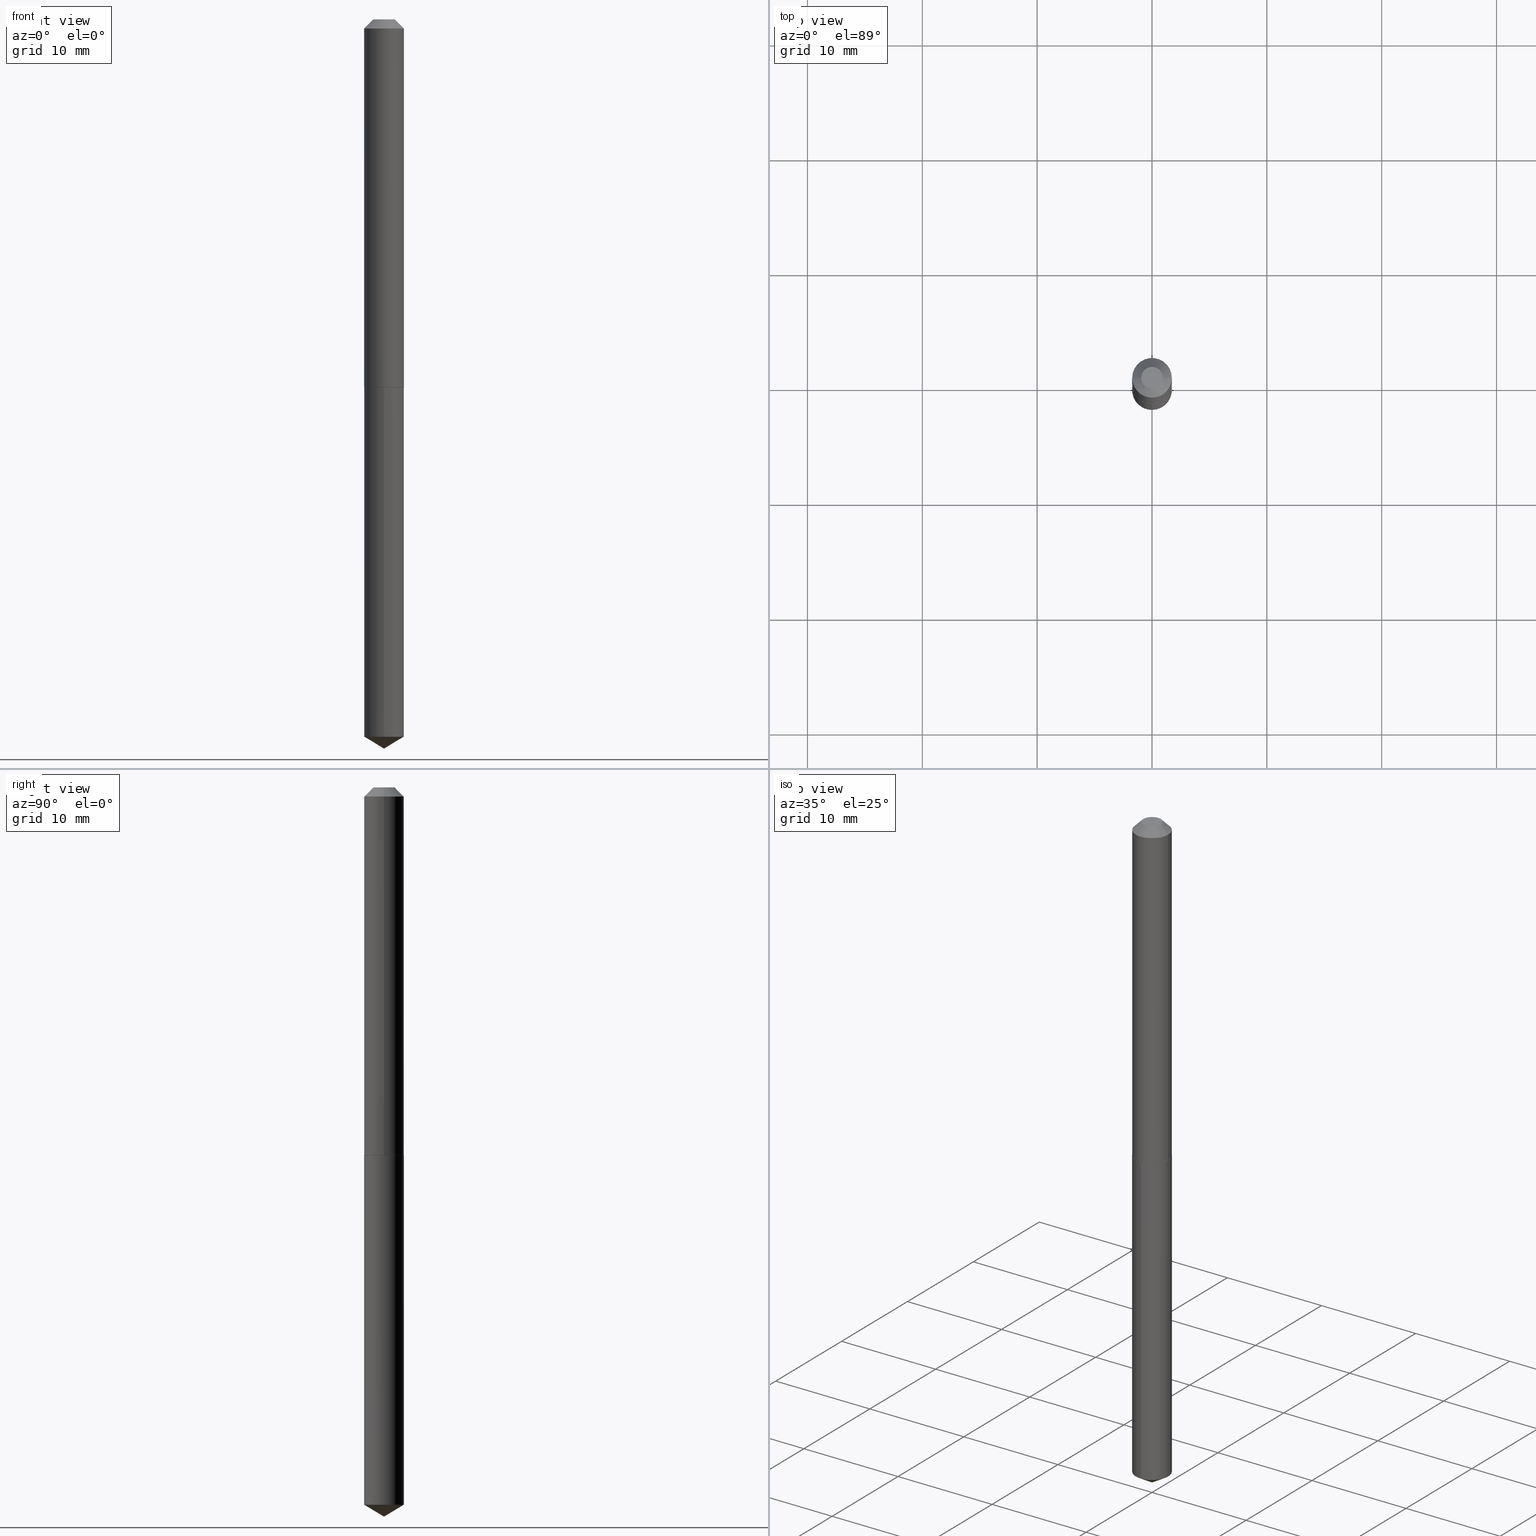
[diagram: canonical four-view strip — front | top / right | iso, engineering-drawing reading convention]
A machine part, canonical four-view strip (front | top / right | iso — engineering-drawing reading convention). The complete STEP part file that produces these views, byte-faithful:
ISO-10303-21;
HEADER;
FILE_DESCRIPTION (( 'STEP AP203' ),
    '1' );
FILE_NAME ('57135.STEP',
    '2024-04-22T22:43:11',
    ( '' ),
    ( '' ),
    'SwSTEP 2.0',
    'SolidWorks 2023',
    '' );
FILE_SCHEMA (( 'CONFIG_CONTROL_DESIGN' ));
ENDSEC;

DATA;
#1 = EDGE_LOOP ( 'NONE', ( #390, #190, #169, #112 ) ) ;
#2 = APPROVAL ( #269, 'UNSPECIFIED' ) ;
#3 = CALENDAR_DATE ( 2024, 22, 4 ) ;
#4 = ORIENTED_EDGE ( 'NONE', *, *, #261, .T. ) ;
#5 = VECTOR ( 'NONE', #339, 39.37007874015748143 ) ;
#6 = AXIS2_PLACEMENT_3D ( 'NONE', #24, #54, #318 ) ;
#7 = PERSON_AND_ORGANIZATION ( #346, #39 ) ;
#8 = APPROVAL_STATUS ( 'not_yet_approved' ) ;
#9 = CONICAL_SURFACE ( 'NONE', #56, 65.52281426576865897, 1.029744258676656088 ) ;
#10 = CARTESIAN_POINT ( 'NONE',  ( 0.000000000000000000, 0.000000000000000000, 0.000000000000000000 ) ) ;
#11 = FACE_OUTER_BOUND ( 'NONE', #264, .T. ) ;
#12 = EDGE_CURVE ( 'NONE', #366, #219, #192, .T. ) ;
#13 = DIRECTION ( 'NONE',  ( -2.445603191114708254E-29, 3.491288891975283825E-15, 1.000000000000000000 ) ) ;
#14 = CARTESIAN_POINT ( 'NONE',  ( -5.615316648579987107E-48, 8.017183961056824277E-34, 2.296212748401286994E-19 ) ) ;
#15 = VECTOR ( 'NONE', #370, 39.37007874015748143 ) ;
#16 = CIRCLE ( 'NONE', #381, 0.03675000000000000488 ) ;
#17 = DIRECTION ( 'NONE',  ( 1.000000000000000000, -6.982962677686265922E-15, 4.876176775795935793E-29 ) ) ;
#18 = CARTESIAN_POINT ( 'NONE',  ( 0.06800000000000000488, -5.756226556873131964E-16, -0.03125000000000020123 ) ) ;
#19 = EDGE_CURVE ( 'NONE', #243, #360, #298, .T. ) ;
#20 = CARTESIAN_POINT ( 'NONE',  ( 0.03675000000000000488, -4.138729785527085640E-16, 4.592425496826011592E-19 ) ) ;
#21 = VECTOR ( 'NONE', #349, 39.37007874015748143 ) ;
#22 = APPROVAL_DATE_TIME ( #119, #357 ) ;
#23 = ADVANCED_FACE ( 'NONE', ( #66 ), #195, .T. ) ;
#24 = CARTESIAN_POINT ( 'NONE',  ( 3.083736164599457894E-29, -4.402757968281207128E-15, -1.261000000000000343 ) ) ;
#25 = ORIENTED_EDGE ( 'NONE', *, *, #295, .T. ) ;
#26 = ORIENTED_EDGE ( 'NONE', *, *, #41, .F. ) ;
#27 = PERSON_AND_ORGANIZATION ( #346, #39 ) ;
#28 = ORIENTED_EDGE ( 'NONE', *, *, #19, .F. ) ;
#29 = MECHANICAL_CONTEXT ( 'NONE', #299, 'mechanical' ) ;
#30 = ORIENTED_EDGE ( 'NONE', *, *, #282, .T. ) ;
#31 = VERTEX_POINT ( 'NONE', #304 ) ;
#32 = VECTOR ( 'NONE', #100, 39.37007874015748854 ) ;
#33 = CALENDAR_DATE ( 2024, 22, 4 ) ;
#34 = CYLINDRICAL_SURFACE ( 'NONE', #113, 0.06800000000000008815 ) ;
#35 = CARTESIAN_POINT ( 'NONE',  ( 0.06800000000000017142, -4.875853689694455105E-15, -1.260500000000000620 ) ) ;
#36 = DIRECTION ( 'NONE',  ( 1.000000000000000000, -6.982962677686265922E-15, 4.876176775795935232E-29 ) ) ;
#37 = DIRECTION ( 'NONE',  ( -6.982962677686265922E-15, -1.000000000000000000, 4.017423520094504617E-15 ) ) ;
#38 = CIRCLE ( 'NONE', #284, 0.06750000000000024036 ) ;
#39 = ORGANIZATION ( 'UNSPECIFIED', 'UNSPECIFIED', '' ) ;
#40 = CARTESIAN_POINT ( 'NONE',  ( -0.03675000000000000488, 3.111782743243937594E-16, 4.592425496782722465E-19 ) ) ;
#41 = EDGE_CURVE ( 'NONE', #360, #384, #152, .T. ) ;
#42 = CARTESIAN_POINT ( 'NONE',  ( 3.082513430196366214E-29, -4.401012227611787991E-15, -1.260500000000000620 ) ) ;
#43 = PRODUCT_DEFINITION_SHAPE ( 'NONE', 'NONE',  #171 ) ;
#44 = FACE_OUTER_BOUND ( 'NONE', #333, .T. ) ;
#45 = CARTESIAN_POINT ( 'NONE',  ( -9.016975168297589205E-28, 1.287238536762655009E-13, 36.87007874015748143 ) ) ;
#46 = LINE ( 'NONE', #309, #156 ) ;
#47 = FACE_OUTER_BOUND ( 'NONE', #146, .T. ) ;
#48 = CARTESIAN_POINT ( 'NONE',  ( -0.06800000000000000488, -1.771891449408448412E-15, -0.03125000000000020123 ) ) ;
#49 = EDGE_CURVE ( 'NONE', #235, #360, #80, .T. ) ;
#50 = CONICAL_SURFACE ( 'NONE', #122, 0.06800000000000000488, 0.7853981633974450594 ) ;
#51 = EDGE_LOOP ( 'NONE', ( #120, #89, #118, #336 ) ) ;
#52 = DIRECTION ( 'NONE',  ( -2.445468806185136597E-29, 3.491481338843145583E-15, 1.000000000000000000 ) ) ;
#53 = EDGE_LOOP ( 'NONE', ( #114, #246, #4, #99 ) ) ;
#54 = DIRECTION ( 'NONE',  ( -2.445468806185136597E-29, 3.491481338843145583E-15, 1.000000000000000000 ) ) ;
#55 = ORIENTED_EDGE ( 'NONE', *, *, #282, .F. ) ;
#56 = AXIS2_PLACEMENT_3D ( 'NONE', #45, #253, #230 ) ;
#57 = ADVANCED_FACE ( 'NONE', ( #274 ), #101, .F. ) ;
#58 =( CONVERSION_BASED_UNIT ( 'INCH', #237 ) LENGTH_UNIT ( ) NAMED_UNIT ( #378 ) );
#59 = ORIENTED_EDGE ( 'NONE', *, *, #257, .F. ) ;
#60 = ORIENTED_EDGE ( 'NONE', *, *, #374, .F. ) ;
#61 = DIRECTION ( 'NONE',  ( 1.000000000000000000, -6.982962677686272233E-15, 0.000000000000000000 ) ) ;
#62 = VERTEX_POINT ( 'NONE', #148 ) ;
#63 = CC_DESIGN_DATE_AND_TIME_ASSIGNMENT ( #188, #180, ( #65 ) ) ;
#64 = AXIS2_PLACEMENT_3D ( 'NONE', #247, #225, #98 ) ;
#65 = SECURITY_CLASSIFICATION ( '', '', #218 ) ;
#66 = FACE_OUTER_BOUND ( 'NONE', #217, .T. ) ;
#67 = EDGE_CURVE ( 'NONE', #142, #208, #267, .T. ) ;
#68 = DIRECTION ( 'NONE',  ( -6.982962677686265922E-15, -1.000000000000000000, 4.017423520094504617E-15 ) ) ;
#69 = CC_DESIGN_APPROVAL ( #312, ( #65 ) ) ;
#70 = DIRECTION ( 'NONE',  ( 6.982962677686265922E-15, 1.000000000000000000, -3.491288891975283825E-15 ) ) ;
#71 = CARTESIAN_POINT ( 'NONE',  ( 7.642090019328601786E-31, -1.091087918388490144E-16, -0.03125000000000020123 ) ) ;
#72 = ADVANCED_BREP_SHAPE_REPRESENTATION ( '57135', ( #317, #207, #150 ), #198 ) ;
#73 = LINE ( 'NONE', #275, #128 ) ;
#74 = DIRECTION ( 'NONE',  ( 1.000000000000000000, -6.982962677686267499E-15, 0.000000000000000000 ) ) ;
#75 = LOCAL_TIME ( 18, 43, 11.00000000000000000, #147 ) ;
#76 = CARTESIAN_POINT ( 'NONE',  ( 0.06750000000000024036, -4.874107949025032024E-15, -1.261000000000000343 ) ) ;
#77 = EDGE_CURVE ( 'NONE', #208, #384, #236, .T. ) ;
#78 = PLANE ( 'NONE',  #324 ) ;
#79 = CALENDAR_DATE ( 2024, 22, 4 ) ;
#80 = CIRCLE ( 'NONE', #335, 0.06800000000000017142 ) ;
#81 = ORIENTED_EDGE ( 'NONE', *, *, #329, .T. ) ;
#82 = DIRECTION ( 'NONE',  ( 1.000000000000000000, -6.982962677686266711E-15, 4.876173967176390576E-29 ) ) ;
#83 = ORIENTED_EDGE ( 'NONE', *, *, #116, .F. ) ;
#84 = ORIENTED_EDGE ( 'NONE', *, *, #321, .F. ) ;
#85 = EDGE_CURVE ( 'NONE', #241, #62, #212, .T. ) ;
#86 = EDGE_LOOP ( 'NONE', ( #205, #25 ) ) ;
#87 = CLOSED_SHELL ( 'NONE', ( #23, #337, #221, #158, #57 ) ) ;
#88 = APPLICATION_PROTOCOL_DEFINITION ( 'international standard', 'config_control_design', 1994, #299 ) ;
#89 = ORIENTED_EDGE ( 'NONE', *, *, #257, .T. ) ;
#90 = APPROVAL_DATE_TIME ( #223, #312 ) ;
#91 = ADVANCED_FACE ( 'NONE', ( #189 ), #34, .T. ) ;
#92 = CARTESIAN_POINT ( 'NONE',  ( 3.083736164599458455E-29, -4.402757968281207916E-15, -1.261000000000000565 ) ) ;
#93 = COORDINATED_UNIVERSAL_TIME_OFFSET ( 5, 0, .BEHIND. ) ;
#94 = ORIENTED_EDGE ( 'NONE', *, *, #187, .F. ) ;
#95 = AXIS2_PLACEMENT_3D ( 'NONE', #226, #340, #70 ) ;
#96 = LOCAL_TIME ( 18, 43, 11.00000000000000000, #93 ) ;
#97 = PERSON_AND_ORGANIZATION_ROLE ( 'classification_officer' ) ;
#98 = DIRECTION ( 'NONE',  ( 1.000000000000000000, -6.982962677686265922E-15, 4.876176775795935232E-29 ) ) ;
#99 = ORIENTED_EDGE ( 'NONE', *, *, #295, .F. ) ;
#100 = DIRECTION ( 'NONE',  ( 6.090539988449786324E-15, 0.8571673007021148871, 0.5150380749100498257 ) ) ;
#101 = PLANE ( 'NONE',  #95 ) ;
#102 = CIRCLE ( 'NONE', #193, 0.06800000000000000488 ) ;
#103 = LINE ( 'NONE', #255, #387 ) ;
#104 = DIRECTION ( 'NONE',  ( -1.000000000000000000, 6.982962677686265922E-15, -4.876176775795935793E-29 ) ) ;
#105 = CC_DESIGN_PERSON_AND_ORGANIZATION_ASSIGNMENT ( #368, #334, ( #259 ) ) ;
#106 = LINE ( 'NONE', #199, #21 ) ;
#107 = FACE_OUTER_BOUND ( 'NONE', #53, .T. ) ;
#108 = AXIS2_PLACEMENT_3D ( 'NONE', #345, #196, #232 ) ;
#109 = APPROVAL_PERSON_ORGANIZATION ( #300, #312, #296 ) ;
#110 = DIRECTION ( 'NONE',  ( -6.982962677686265922E-15, -1.000000000000000000, 4.017423520094504617E-15 ) ) ;
#111 = DIRECTION ( 'NONE',  ( 1.000000000000000000, -6.982962677686272233E-15, 0.000000000000000000 ) ) ;
#112 = ORIENTED_EDGE ( 'NONE', *, *, #77, .F. ) ;
#113 = AXIS2_PLACEMENT_3D ( 'NONE', #10, #154, #36 ) ;
#114 = ORIENTED_EDGE ( 'NONE', *, *, #231, .F. ) ;
#115 =( LENGTH_UNIT ( ) NAMED_UNIT ( * ) SI_UNIT ( $, .METRE. ) );
#116 = EDGE_CURVE ( 'NONE', #181, #219, #270, .T. ) ;
#117 = ORIENTED_EDGE ( 'NONE', *, *, #211, .T. ) ;
#118 = ORIENTED_EDGE ( 'NONE', *, *, #19, .T. ) ;
#119 = DATE_AND_TIME ( #3, #75 ) ;
#120 = ORIENTED_EDGE ( 'NONE', *, *, #302, .F. ) ;
#121 = AXIS2_PLACEMENT_3D ( 'NONE', #338, #303, #61 ) ;
#122 = AXIS2_PLACEMENT_3D ( 'NONE', #201, #325, #328 ) ;
#123 = SHAPE_DEFINITION_REPRESENTATION ( #43, #72 ) ;
#124 = CYLINDRICAL_SURFACE ( 'NONE', #64, 0.06800000000000008815 ) ;
#125 = PERSON_AND_ORGANIZATION_ROLE ( 'design_supplier' ) ;
#126 = DIRECTION ( 'NONE',  ( -6.982962677686265922E-15, -1.000000000000000000, 4.017423520094504617E-15 ) ) ;
#127 = COORDINATED_UNIVERSAL_TIME_OFFSET ( 5, 0, .BEHIND. ) ;
#128 = VECTOR ( 'NONE', #350, 39.37007874015748143 ) ;
#129 = APPROVAL_PERSON_ORGANIZATION ( #182, #2, #372 ) ;
#130 = ADVANCED_FACE ( 'NONE', ( #250 ), #124, .T. ) ;
#131 = PLANE ( 'NONE',  #160 ) ;
#132 = DIRECTION ( 'NONE',  ( -5.985567269335949168E-15, -0.8571673007021112234, 0.5150380749100558209 ) ) ;
#133 = CC_DESIGN_PERSON_AND_ORGANIZATION_ASSIGNMENT ( #7, #125, ( #259 ) ) ;
#134 = CIRCLE ( 'NONE', #388, 0.06800000000000000488 ) ;
#135 = FACE_OUTER_BOUND ( 'NONE', #215, .T. ) ;
#136 = DIRECTION ( 'NONE',  ( -6.982962677686265922E-15, -1.000000000000000000, 4.017423520094504617E-15 ) ) ;
#137 = CARTESIAN_POINT ( 'NONE',  ( 3.083736164599457894E-29, -4.402757968281207128E-15, -1.261000000000000343 ) ) ;
#138 = ADVANCED_FACE ( 'NONE', ( #332 ), #283, .T. ) ;
#139 = CARTESIAN_POINT ( 'NONE',  ( -4.748414620826352642E-16, -0.06800000000000440414, -1.261000000000000343 ) ) ;
#140 = PERSON_AND_ORGANIZATION ( #346, #39 ) ;
#141 = CARTESIAN_POINT ( 'NONE',  ( -1.123063329715997421E-47, 1.603436792211364855E-33, 4.592425496802573988E-19 ) ) ;
#142 = VERTEX_POINT ( 'NONE', #40 ) ;
#143 = PRODUCT ( '57135', '57135', '', ( #29 ) ) ;
#144 = ORIENTED_EDGE ( 'NONE', *, *, #211, .F. ) ;
#145 = PERSON_AND_ORGANIZATION_ROLE ( 'design_owner' ) ;
#146 = EDGE_LOOP ( 'NONE', ( #144, #60, #358, #239 ) ) ;
#147 = COORDINATED_UNIVERSAL_TIME_OFFSET ( 5, 0, .BEHIND. ) ;
#148 = CARTESIAN_POINT ( 'NONE',  ( 4.831690603169284104E-16, 0.06799999999999560563, -1.261000000000000787 ) ) ;
#149 = VECTOR ( 'NONE', #227, 39.37007874015748143 ) ;
#150 = AXIS2_PLACEMENT_3D ( 'NONE', #389, #359, #216 ) ;
#151 = CALENDAR_DATE ( 2024, 22, 4 ) ;
#152 = LINE ( 'NONE', #252, #15 ) ;
#153 = ADVANCED_FACE ( 'NONE', ( #11 ), #131, .F. ) ;
#154 = DIRECTION ( 'NONE',  ( -2.445468806185136597E-29, 3.491481338843145583E-15, 1.000000000000000000 ) ) ;
#155 = CARTESIAN_POINT ( 'NONE',  ( 3.083736164599458455E-29, -4.402757968281207916E-15, -1.261000000000000565 ) ) ;
#156 = VECTOR ( 'NONE', #132, 39.37007874015748143 ) ;
#157 = DIRECTION ( 'NONE',  ( 1.000000000000000000, -6.982962677686272233E-15, 0.000000000000000000 ) ) ;
#158 = ADVANCED_FACE ( 'NONE', ( #107 ), #382, .T. ) ;
#159 = DIRECTION ( 'NONE',  ( -1.000000000000000000, 6.982962677686267499E-15, 0.000000000000000000 ) ) ;
#160 = AXIS2_PLACEMENT_3D ( 'NONE', #163, #314, #17 ) ;
#161 = CARTESIAN_POINT ( 'NONE',  ( -0.06800000000000017142, -3.917843167294917857E-15, -1.260500000000000620 ) ) ;
#162 = DIRECTION ( 'NONE',  ( -2.445468806185136877E-29, 3.491481338843145188E-15, 1.000000000000000000 ) ) ;
#163 = CARTESIAN_POINT ( 'NONE',  ( 3.083736164599458455E-29, -4.402757968281207916E-15, -1.261000000000000565 ) ) ;
#164 = ADVANCED_FACE ( 'NONE', ( #135 ), #297, .T. ) ;
#165 = AXIS2_PLACEMENT_3D ( 'NONE', #155, #186, #68 ) ;
#166 = DIRECTION ( 'NONE',  ( -2.445468806185136597E-29, 3.491481338843145583E-15, 1.000000000000000000 ) ) ;
#167 = AXIS2_PLACEMENT_3D ( 'NONE', #365, #322, #240 ) ;
#168 = CARTESIAN_POINT ( 'NONE',  ( -1.123063329715997421E-47, 1.603436792211364855E-33, 4.592425496802573988E-19 ) ) ;
#169 = ORIENTED_EDGE ( 'NONE', *, *, #41, .T. ) ;
#170 = DIRECTION ( 'NONE',  ( -2.445468806185136597E-29, 3.491481338843145583E-15, 1.000000000000000000 ) ) ;
#171 = PRODUCT_DEFINITION ( 'UNKNOWN', '', #259, #351 ) ;
#172 =( NAMED_UNIT ( * ) PLANE_ANGLE_UNIT ( ) SI_UNIT ( $, .RADIAN. ) );
#173 = ORIENTED_EDGE ( 'NONE', *, *, #261, .F. ) ;
#174 =( NAMED_UNIT ( * ) SI_UNIT ( $, .STERADIAN. ) SOLID_ANGLE_UNIT ( ) );
#175 = UNCERTAINTY_MEASURE_WITH_UNIT (LENGTH_MEASURE( 1.000000000000000082E-05 ), #58, 'distance_accuracy_value', 'NONE');
#176 = AXIS2_PLACEMENT_3D ( 'NONE', #342, #170, #320 ) ;
#177 = LOCAL_TIME ( 18, 43, 11.00000000000000000, #127 ) ;
#178 = APPLICATION_CONTEXT ( 'configuration controlled 3d designs of mechanical parts and assemblies' ) ;
#179 = ORIENTED_EDGE ( 'NONE', *, *, #116, .T. ) ;
#180 = DATE_TIME_ROLE ( 'classification_date' ) ;
#181 = VERTEX_POINT ( 'NONE', #313 ) ;
#182 = PERSON_AND_ORGANIZATION ( #346, #39 ) ;
#183 = DIRECTION ( 'NONE',  ( -2.445603191114708254E-29, 3.491288891975283825E-15, 1.000000000000000000 ) ) ;
#184 = DIRECTION ( 'NONE',  ( -2.445603191114708254E-29, 3.491288891975283825E-15, 1.000000000000000000 ) ) ;
#185 = CIRCLE ( 'NONE', #341, 0.03675000000000000488 ) ;
#186 = DIRECTION ( 'NONE',  ( -2.445603191114708254E-29, 3.491288891975283825E-15, 1.000000000000000000 ) ) ;
#187 = EDGE_CURVE ( 'NONE', #181, #366, #46, .T. ) ;
#188 = DATE_AND_TIME ( #331, #177 ) ;
#189 = FACE_OUTER_BOUND ( 'NONE', #1, .T. ) ;
#190 = ORIENTED_EDGE ( 'NONE', *, *, #49, .T. ) ;
#191 = ORIENTED_EDGE ( 'NONE', *, *, #302, .T. ) ;
#192 = CIRCLE ( 'NONE', #266, 0.06800000000000000488 ) ;
#193 = AXIS2_PLACEMENT_3D ( 'NONE', #311, #307, #74 ) ;
#194 = EDGE_CURVE ( 'NONE', #235, #208, #103, .T. ) ;
#195 = CYLINDRICAL_SURFACE ( 'NONE', #165, 0.06800000000000000488 ) ;
#196 = DIRECTION ( 'NONE',  ( -2.445603191114708254E-29, 3.491288891975283825E-15, 1.000000000000000000 ) ) ;
#197 = DIRECTION ( 'NONE',  ( 2.438088387897960049E-29, -3.491481338843145188E-15, -1.000000000000000000 ) ) ;
#198 =( GEOMETRIC_REPRESENTATION_CONTEXT ( 3 ) GLOBAL_UNCERTAINTY_ASSIGNED_CONTEXT ( ( #175 ) ) GLOBAL_UNIT_ASSIGNED_CONTEXT ( ( #58, #172, #174 ) ) REPRESENTATION_CONTEXT ( 'NONE', 'WORKASPACE' ) );
#199 = CARTESIAN_POINT ( 'NONE',  ( -0.06800000000000017142, -3.917843167294917857E-15, -1.260500000000000620 ) ) ;
#200 = DIRECTION ( 'NONE',  ( 1.000000000000000000, -6.982962677686272233E-15, 0.000000000000000000 ) ) ;
#201 = CARTESIAN_POINT ( 'NONE',  ( 7.642090019328601786E-31, -1.091087918388490144E-16, -0.03125000000000020123 ) ) ;
#202 = DATE_AND_TIME ( #79, #214 ) ;
#203 = CIRCLE ( 'NONE', #245, 0.06800000000000017142 ) ;
#204 = CC_DESIGN_DATE_AND_TIME_ASSIGNMENT ( #202, #315, ( #171 ) ) ;
#205 = ORIENTED_EDGE ( 'NONE', *, *, #85, .T. ) ;
#206 = FACE_OUTER_BOUND ( 'NONE', #319, .T. ) ;
#207 = MANIFOLD_SOLID_BREP ( 'Body-Move/Copy2[2]', #363 ) ;
#208 = VERTEX_POINT ( 'NONE', #48 ) ;
#209 = CARTESIAN_POINT ( 'NONE',  ( -4.748414620826059778E-16, -0.06800000000000858136, -2.459141477906126028 ) ) ;
#210 = ORIENTED_EDGE ( 'NONE', *, *, #231, .T. ) ;
#211 = EDGE_CURVE ( 'NONE', #224, #384, #233, .T. ) ;
#212 = CIRCLE ( 'NONE', #310, 0.06800000000000000488 ) ;
#213 = CONICAL_SURFACE ( 'NONE', #376, 0.06800000000000017142, 0.7853981633977554777 ) ;
#214 = LOCAL_TIME ( 18, 43, 11.00000000000000000, #383 ) ;
#215 = EDGE_LOOP ( 'NONE', ( #84, #117, #30, #323 ) ) ;
#216 = DIRECTION ( 'NONE',  ( 1.000000000000000000, 0.000000000000000000, 0.000000000000000000 ) ) ;
#217 = EDGE_LOOP ( 'NONE', ( #293, #210, #386, #173 ) ) ;
#218 = SECURITY_CLASSIFICATION_LEVEL ( 'unclassified' ) ;
#219 = VERTEX_POINT ( 'NONE', #380 ) ;
#220 = APPROVAL_DATE_TIME ( #371, #2 ) ;
#221 = ADVANCED_FACE ( 'NONE', ( #276 ), #9, .T. ) ;
#222 = CC_DESIGN_APPROVAL ( #357, ( #171 ) ) ;
#223 = DATE_AND_TIME ( #33, #96 ) ;
#224 = VERTEX_POINT ( 'NONE', #20 ) ;
#225 = DIRECTION ( 'NONE',  ( -2.445468806185136597E-29, 3.491481338843145583E-15, 1.000000000000000000 ) ) ;
#226 = CARTESIAN_POINT ( 'NONE',  ( 3.083736164599458455E-29, -4.402757968281207916E-15, -1.261000000000000565 ) ) ;
#227 = DIRECTION ( 'NONE',  ( -0.7071067811865452413, 2.468850131082233000E-15, -0.7071067811865497932 ) ) ;
#228 = DIRECTION ( 'NONE',  ( 1.000000000000000000, -6.982962677686271444E-15, 0.000000000000000000 ) ) ;
#229 = DIRECTION ( 'NONE',  ( -2.445468806185136597E-29, 3.491481338843145583E-15, 1.000000000000000000 ) ) ;
#230 = DIRECTION ( 'NONE',  ( -6.982962677686265922E-15, -1.000000000000000000, 3.468864327941581987E-15 ) ) ;
#231 = EDGE_CURVE ( 'NONE', #219, #62, #73, .T. ) ;
#232 = DIRECTION ( 'NONE',  ( -6.982962677686265922E-15, -1.000000000000000000, 4.017423520094504617E-15 ) ) ;
#233 = LINE ( 'NONE', #18, #290 ) ;
#234 = CARTESIAN_POINT ( 'NONE',  ( 0.06800000000000017142, -4.875853689694455105E-15, -1.260500000000000620 ) ) ;
#235 = VERTEX_POINT ( 'NONE', #161 ) ;
#236 = CIRCLE ( 'NONE', #176, 0.06800000000000000488 ) ;
#237 = LENGTH_MEASURE_WITH_UNIT ( LENGTH_MEASURE( 0.02539999999999999897 ), #115 );
#238 = LOCAL_TIME ( 18, 43, 11.00000000000000000, #367 ) ;
#239 = ORIENTED_EDGE ( 'NONE', *, *, #77, .T. ) ;
#240 = DIRECTION ( 'NONE',  ( -6.982962677686265922E-15, -1.000000000000000000, 3.468864327941581987E-15 ) ) ;
#241 = VERTEX_POINT ( 'NONE', #256 ) ;
#242 = APPLICATION_PROTOCOL_DEFINITION ( 'international standard', 'config_control_design', 1994, #178 ) ;
#243 = VERTEX_POINT ( 'NONE', #76 ) ;
#244 = EDGE_CURVE ( 'NONE', #219, #366, #272, .T. ) ;
#245 = AXIS2_PLACEMENT_3D ( 'NONE', #286, #166, #111 ) ;
#246 = ORIENTED_EDGE ( 'NONE', *, *, #244, .T. ) ;
#247 = CARTESIAN_POINT ( 'NONE',  ( 0.000000000000000000, 0.000000000000000000, 0.000000000000000000 ) ) ;
#248 = ADVANCED_FACE ( 'NONE', ( #44 ), #78, .F. ) ;
#249 = CARTESIAN_POINT ( 'NONE',  ( 6.013914786373571822E-29, -8.585816001109714580E-15, -2.459141477906126028 ) ) ;
#250 = FACE_OUTER_BOUND ( 'NONE', #373, .T. ) ;
#251 = PRODUCT_RELATED_PRODUCT_CATEGORY ( 'detail', '', ( #143 ) ) ;
#252 = CARTESIAN_POINT ( 'NONE',  ( 0.06800000000000008815, -4.748414620826667201E-16, 3.315800207541240207E-30 ) ) ;
#253 = DIRECTION ( 'NONE',  ( -2.445603191114708254E-29, 3.491288891975283825E-15, 1.000000000000000000 ) ) ;
#254 = AXIS2_PLACEMENT_3D ( 'NONE', #281, #280, #110 ) ;
#255 = CARTESIAN_POINT ( 'NONE',  ( -0.06800000000000008815, 4.831690603168687527E-16, -3.344875861373340259E-30 ) ) ;
#256 = CARTESIAN_POINT ( 'NONE',  ( -4.748414620826353629E-16, -0.06800000000000441802, -1.261000000000000343 ) ) ;
#257 = EDGE_CURVE ( 'NONE', #31, #243, #38, .T. ) ;
#258 = CARTESIAN_POINT ( 'NONE',  ( 3.082513430196366214E-29, -4.401012227611787991E-15, -1.260500000000000620 ) ) ;
#259 = PRODUCT_DEFINITION_FORMATION_WITH_SPECIFIED_SOURCE ( 'ANY', '', #143, .NOT_KNOWN. ) ;
#260 = CARTESIAN_POINT ( 'NONE',  ( 3.083736164599458455E-29, -4.402757968281207916E-15, -1.261000000000000565 ) ) ;
#261 = EDGE_CURVE ( 'NONE', #366, #241, #375, .T. ) ;
#262 = PERSON_AND_ORGANIZATION_ROLE ( 'creator' ) ;
#263 = DIRECTION ( 'NONE',  ( 1.000000000000000000, -6.982962677686266711E-15, 4.876173967176390576E-29 ) ) ;
#264 = EDGE_LOOP ( 'NONE', ( #287, #59 ) ) ;
#265 = ORIENTED_EDGE ( 'NONE', *, *, #12, .F. ) ;
#266 = AXIS2_PLACEMENT_3D ( 'NONE', #249, #184, #37 ) ;
#267 = LINE ( 'NONE', #288, #149 ) ;
#268 = CC_DESIGN_PERSON_AND_ORGANIZATION_ASSIGNMENT ( #140, #262, ( #171 ) ) ;
#269 = APPROVAL_STATUS ( 'not_yet_approved' ) ;
#270 = LINE ( 'NONE', #271, #32 ) ;
#271 = CARTESIAN_POINT ( 'NONE',  ( 6.114010949704518672E-29, -8.728222229938209365E-15, -2.500000000000000000 ) ) ;
#272 = CIRCLE ( 'NONE', #108, 0.06800000000000000488 ) ;
#273 = CC_DESIGN_APPROVAL ( #2, ( #259 ) ) ;
#274 = FACE_OUTER_BOUND ( 'NONE', #86, .T. ) ;
#275 = CARTESIAN_POINT ( 'NONE',  ( 4.831690603168988281E-16, 0.06799999999999559175, -1.261000000000000787 ) ) ;
#276 = FACE_OUTER_BOUND ( 'NONE', #294, .T. ) ;
#277 = CC_DESIGN_SECURITY_CLASSIFICATION ( #65, ( #259 ) ) ;
#278 = ADVANCED_FACE ( 'NONE', ( #343 ), #213, .T. ) ;
#279 = DIRECTION ( 'NONE',  ( -2.445603191114708534E-29, 3.491288891975283825E-15, 1.000000000000000000 ) ) ;
#280 = DIRECTION ( 'NONE',  ( -2.445603191114708254E-29, 3.491288891975283825E-15, 1.000000000000000000 ) ) ;
#281 = CARTESIAN_POINT ( 'NONE',  ( 3.083736164599458455E-29, -4.402757968281207916E-15, -1.261000000000000565 ) ) ;
#282 = EDGE_CURVE ( 'NONE', #384, #208, #102, .T. ) ;
#283 = CONICAL_SURFACE ( 'NONE', #121, 0.06800000000000017142, 0.7853981633977554777 ) ;
#284 = AXIS2_PLACEMENT_3D ( 'NONE', #137, #229, #228 ) ;
#285 = PERSON_AND_ORGANIZATION ( #346, #39 ) ;
#286 = CARTESIAN_POINT ( 'NONE',  ( 3.082513430196366214E-29, -4.401012227611787991E-15, -1.260500000000000620 ) ) ;
#287 = ORIENTED_EDGE ( 'NONE', *, *, #364, .F. ) ;
#288 = CARTESIAN_POINT ( 'NONE',  ( -0.06800000000000000488, 3.657326702438171757E-16, -0.03125000000000020123 ) ) ;
#289 = ORIENTED_EDGE ( 'NONE', *, *, #187, .T. ) ;
#290 = VECTOR ( 'NONE', #377, 39.37007874015748143 ) ;
#291 = CC_DESIGN_PERSON_AND_ORGANIZATION_ASSIGNMENT ( #369, #97, ( #65 ) ) ;
#292 = ORIENTED_EDGE ( 'NONE', *, *, #321, .T. ) ;
#293 = ORIENTED_EDGE ( 'NONE', *, *, #12, .T. ) ;
#294 = EDGE_LOOP ( 'NONE', ( #83, #289, #316 ) ) ;
#295 = EDGE_CURVE ( 'NONE', #62, #241, #134, .T. ) ;
#296 = APPROVAL_ROLE ( '' ) ;
#297 = CONICAL_SURFACE ( 'NONE', #354, 0.06800000000000000488, 0.7853981633974450594 ) ;
#298 = LINE ( 'NONE', #35, #5 ) ;
#299 = APPLICATION_CONTEXT ( 'configuration controlled 3d designs of mechanical parts and assemblies' ) ;
#300 = PERSON_AND_ORGANIZATION ( #346, #39 ) ;
#301 = EDGE_LOOP ( 'NONE', ( #330, #191, #353, #28 ) ) ;
#302 = EDGE_CURVE ( 'NONE', #31, #235, #106, .T. ) ;
#303 = DIRECTION ( 'NONE',  ( -2.445468806185136597E-29, 3.491481338843145583E-15, 1.000000000000000000 ) ) ;
#304 = CARTESIAN_POINT ( 'NONE',  ( -0.06750000000000024036, -3.920492394469028269E-15, -1.261000000000000343 ) ) ;
#305 = CIRCLE ( 'NONE', #6, 0.06750000000000024036 ) ;
#306 = DIRECTION ( 'NONE',  ( -2.445468806185136597E-29, 3.491481338843145583E-15, 1.000000000000000000 ) ) ;
#307 = DIRECTION ( 'NONE',  ( -2.445468806185136597E-29, 3.491481338843145583E-15, 1.000000000000000000 ) ) ;
#308 = ADVANCED_FACE ( 'NONE', ( #47 ), #50, .T. ) ;
#309 = CARTESIAN_POINT ( 'NONE',  ( 6.113669058994391086E-29, -8.728707580938957701E-15, -2.500000000000000000 ) ) ;
#310 = AXIS2_PLACEMENT_3D ( 'NONE', #92, #183, #126 ) ;
#311 = CARTESIAN_POINT ( 'NONE',  ( 7.642090019328601786E-31, -1.091087918388490144E-16, -0.03125000000000020123 ) ) ;
#312 = APPROVAL ( #8, 'UNSPECIFIED' ) ;
#313 = CARTESIAN_POINT ( 'NONE',  ( 6.114007977786770634E-29, -8.728222229938209365E-15, -2.500000000000000000 ) ) ;
#314 = DIRECTION ( 'NONE',  ( -2.438088387897960049E-29, 3.491481338843145188E-15, 1.000000000000000000 ) ) ;
#315 = DATE_TIME_ROLE ( 'creation_date' ) ;
#316 = ORIENTED_EDGE ( 'NONE', *, *, #244, .F. ) ;
#317 = MANIFOLD_SOLID_BREP ( 'Body-Move/Copy2[1]', #87 ) ;
#318 = DIRECTION ( 'NONE',  ( 1.000000000000000000, -6.982962677686271444E-15, 0.000000000000000000 ) ) ;
#319 = EDGE_LOOP ( 'NONE', ( #94, #179, #265 ) ) ;
#320 = DIRECTION ( 'NONE',  ( 1.000000000000000000, -6.982962677686267499E-15, 0.000000000000000000 ) ) ;
#321 = EDGE_CURVE ( 'NONE', #224, #142, #185, .T. ) ;
#322 = DIRECTION ( 'NONE',  ( -2.445603191114708254E-29, 3.491288891975283825E-15, 1.000000000000000000 ) ) ;
#323 = ORIENTED_EDGE ( 'NONE', *, *, #67, .F. ) ;
#324 = AXIS2_PLACEMENT_3D ( 'NONE', #14, #197, #104 ) ;
#325 = DIRECTION ( 'NONE',  ( 2.445468806185136597E-29, -3.491481338843145583E-15, -1.000000000000000000 ) ) ;
#326 = VECTOR ( 'NONE', #279, 39.37007874015748143 ) ;
#327 = ORIENTED_EDGE ( 'NONE', *, *, #194, .T. ) ;
#328 = DIRECTION ( 'NONE',  ( -1.000000000000000000, 6.982962677686267499E-15, 0.000000000000000000 ) ) ;
#329 = EDGE_CURVE ( 'NONE', #360, #235, #203, .T. ) ;
#330 = ORIENTED_EDGE ( 'NONE', *, *, #364, .T. ) ;
#331 = CALENDAR_DATE ( 2024, 22, 4 ) ;
#332 = FACE_OUTER_BOUND ( 'NONE', #301, .T. ) ;
#333 = EDGE_LOOP ( 'NONE', ( #362, #292 ) ) ;
#334 = PERSON_AND_ORGANIZATION_ROLE ( 'creator' ) ;
#335 = AXIS2_PLACEMENT_3D ( 'NONE', #42, #306, #157 ) ;
#336 = ORIENTED_EDGE ( 'NONE', *, *, #49, .F. ) ;
#337 = ADVANCED_FACE ( 'NONE', ( #206 ), #348, .T. ) ;
#338 = CARTESIAN_POINT ( 'NONE',  ( 3.082513430196366214E-29, -4.401012227611787991E-15, -1.260500000000000620 ) ) ;
#339 = DIRECTION ( 'NONE',  ( 0.7071067811867647324, -2.468850131084532135E-15, 0.7071067811863303021 ) ) ;
#340 = DIRECTION ( 'NONE',  ( 2.445603191114707973E-29, -3.491288891975283825E-15, -1.000000000000000000 ) ) ;
#341 = AXIS2_PLACEMENT_3D ( 'NONE', #168, #356, #82 ) ;
#342 = CARTESIAN_POINT ( 'NONE',  ( 7.642090019328601786E-31, -1.091087918388490144E-16, -0.03125000000000020123 ) ) ;
#343 = FACE_OUTER_BOUND ( 'NONE', #51, .T. ) ;
#344 = CC_DESIGN_PERSON_AND_ORGANIZATION_ASSIGNMENT ( #27, #145, ( #143 ) ) ;
#345 = CARTESIAN_POINT ( 'NONE',  ( 6.013914786373571822E-29, -8.585816001109714580E-15, -2.459141477906126028 ) ) ;
#346 = PERSON ( 'UNSPECIFIED', 'UNSPECIFIED', 'UNSPECIFIED', ('UNSPECIFIED'), ('UNSPECIFIED'), ('UNSPECIFIED') ) ;
#347 = DIRECTION ( 'NONE',  ( 2.445468806185136597E-29, -3.491481338843145583E-15, -1.000000000000000000 ) ) ;
#348 = CONICAL_SURFACE ( 'NONE', #167, 65.52281426576865897, 1.029744258676656088 ) ;
#349 = DIRECTION ( 'NONE',  ( -0.7071067811867647324, 7.493145998871139866E-15, 0.7071067811863303021 ) ) ;
#350 = DIRECTION ( 'NONE',  ( -2.445603191114708534E-29, 3.491288891975283825E-15, 1.000000000000000000 ) ) ;
#351 = DESIGN_CONTEXT ( 'detailed design', #178, 'design' ) ;
#352 = APPROVAL_ROLE ( '' ) ;
#353 = ORIENTED_EDGE ( 'NONE', *, *, #329, .F. ) ;
#354 = AXIS2_PLACEMENT_3D ( 'NONE', #71, #347, #159 ) ;
#355 = APPROVAL_PERSON_ORGANIZATION ( #285, #357, #352 ) ;
#356 = DIRECTION ( 'NONE',  ( -2.445468806185136597E-29, 3.491481338843145583E-15, 1.000000000000000000 ) ) ;
#357 = APPROVAL ( #361, 'UNSPECIFIED' ) ;
#358 = ORIENTED_EDGE ( 'NONE', *, *, #67, .T. ) ;
#359 = DIRECTION ( 'NONE',  ( 0.000000000000000000, 0.000000000000000000, 1.000000000000000000 ) ) ;
#360 = VERTEX_POINT ( 'NONE', #234 ) ;
#361 = APPROVAL_STATUS ( 'not_yet_approved' ) ;
#362 = ORIENTED_EDGE ( 'NONE', *, *, #374, .T. ) ;
#363 = CLOSED_SHELL ( 'NONE', ( #164, #130, #138, #153, #278, #91, #308, #248 ) ) ;
#364 = EDGE_CURVE ( 'NONE', #243, #31, #305, .T. ) ;
#365 = CARTESIAN_POINT ( 'NONE',  ( -9.016975168297589205E-28, 1.287238536762655009E-13, 36.87007874015748143 ) ) ;
#366 = VERTEX_POINT ( 'NONE', #209 ) ;
#367 = COORDINATED_UNIVERSAL_TIME_OFFSET ( 5, 0, .BEHIND. ) ;
#368 = PERSON_AND_ORGANIZATION ( #346, #39 ) ;
#369 = PERSON_AND_ORGANIZATION ( #346, #39 ) ;
#370 = DIRECTION ( 'NONE',  ( -2.445468806185136877E-29, 3.491481338843145188E-15, 1.000000000000000000 ) ) ;
#371 = DATE_AND_TIME ( #151, #238 ) ;
#372 = APPROVAL_ROLE ( '' ) ;
#373 = EDGE_LOOP ( 'NONE', ( #81, #327, #55, #26 ) ) ;
#374 = EDGE_CURVE ( 'NONE', #142, #224, #16, .T. ) ;
#375 = LINE ( 'NONE', #139, #326 ) ;
#376 = AXIS2_PLACEMENT_3D ( 'NONE', #258, #379, #200 ) ;
#377 = DIRECTION ( 'NONE',  ( 0.7071067811865452413, -7.319954787623248157E-15, -0.7071067811865497932 ) ) ;
#378 = DIMENSIONAL_EXPONENTS ( 1.000000000000000000, 0.000000000000000000, 0.000000000000000000, 0.000000000000000000, 0.000000000000000000, 0.000000000000000000, 0.000000000000000000 ) ;
#379 = DIRECTION ( 'NONE',  ( -2.445468806185136597E-29, 3.491481338843145583E-15, 1.000000000000000000 ) ) ;
#380 = CARTESIAN_POINT ( 'NONE',  ( 4.831690603169282131E-16, 0.06799999999999140066, -2.459141477906126472 ) ) ;
#381 = AXIS2_PLACEMENT_3D ( 'NONE', #141, #52, #263 ) ;
#382 = CYLINDRICAL_SURFACE ( 'NONE', #254, 0.06800000000000000488 ) ;
#383 = COORDINATED_UNIVERSAL_TIME_OFFSET ( 5, 0, .BEHIND. ) ;
#384 = VERTEX_POINT ( 'NONE', #385 ) ;
#385 = CARTESIAN_POINT ( 'NONE',  ( 0.06800000000000000488, -5.839502539215152291E-16, -0.03125000000000020123 ) ) ;
#386 = ORIENTED_EDGE ( 'NONE', *, *, #85, .F. ) ;
#387 = VECTOR ( 'NONE', #162, 39.37007874015748143 ) ;
#388 = AXIS2_PLACEMENT_3D ( 'NONE', #260, #13, #136 ) ;
#389 = CARTESIAN_POINT ( 'NONE',  ( 0.000000000000000000, 0.000000000000000000, 0.000000000000000000 ) ) ;
#390 = ORIENTED_EDGE ( 'NONE', *, *, #194, .F. ) ;
ENDSEC;
END-ISO-10303-21;
